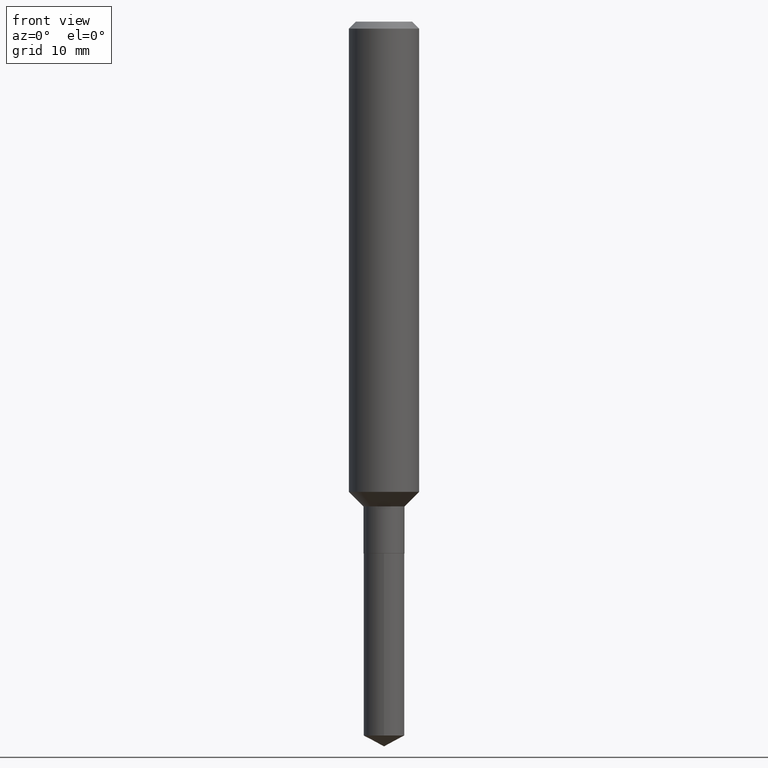
[diagram: clean part render]
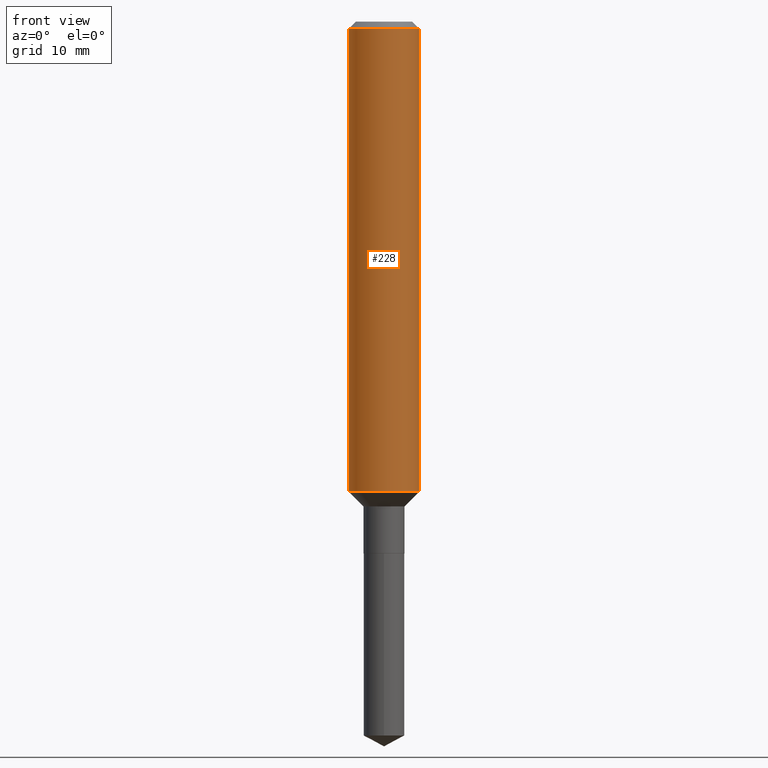
[diagram: same view with one face highlighted and labeled with its STEP entity id]
A machine part, front view. The second image highlights one B-rep face of the part: STEP entity #228.
In plain terms, the highlighted cylindrical surface (edge-blend (fillet) strip) has radius 2.9997 mm, axis along (-0, 0, 1).
Its self-contained STEP definition (entity closure, byte-faithful):
#21 = DIRECTION ( 'NONE',  ( 1.000000000000000000, -6.982962677686269077E-15, 0.000000000000000000 ) ) ;
#23 = DIRECTION ( 'NONE',  ( 1.000000000000000000, -6.982962677686266711E-15, 0.000000000000000000 ) ) ;
#44 = ORIENTED_EDGE ( 'NONE', *, *, #375, .T. ) ;
#47 = CYLINDRICAL_SURFACE ( 'NONE', #214, 0.1181000000000001077 ) ;
#51 = CARTESIAN_POINT ( 'NONE',  ( -0.1181000000000001909, -4.689958877259323265E-15, -1.583599999999999453 ) ) ;
#52 = ORIENTED_EDGE ( 'NONE', *, *, #329, .F. ) ;
#64 = EDGE_CURVE ( 'NONE', #466, #400, #371, .T. ) ;
#91 = CARTESIAN_POINT ( 'NONE',  ( 0.1181000000000001909, -6.353797740426752880E-15, -1.583599999999999453 ) ) ;
#96 = CARTESIAN_POINT ( 'NONE',  ( -0.1180999999999999966, -1.966638347775060263E-15, -0.02362000000000013741 ) ) ;
#100 = DIRECTION ( 'NONE',  ( -2.445468806185136597E-29, 3.491481338843145583E-15, 1.000000000000000000 ) ) ;
#120 = ORIENTED_EDGE ( 'NONE', *, *, #363, .F. ) ;
#156 = LINE ( 'NONE', #302, #282 ) ;
#179 = LINE ( 'NONE', #392, #378 ) ;
#197 = CARTESIAN_POINT ( 'NONE',  ( 0.000000000000000000, 0.000000000000000000, 0.000000000000000000 ) ) ;
#204 = DIRECTION ( 'NONE',  ( -2.445468806185136877E-29, 3.491481338843145188E-15, 1.000000000000000000 ) ) ;
#214 = AXIS2_PLACEMENT_3D ( 'NONE', #197, #377, #486 ) ;
#228 = ADVANCED_FACE ( 'NONE', ( #344 ), #47, .T. ) ;
#231 = VERTEX_POINT ( 'NONE', #303 ) ;
#247 = CARTESIAN_POINT ( 'NONE',  ( 3.872644401474781169E-29, -5.529109848192003829E-15, -1.583599999999999453 ) ) ;
#251 = AXIS2_PLACEMENT_3D ( 'NONE', #397, #100, #23 ) ;
#282 = VECTOR ( 'NONE', #458, 39.37007874015748143 ) ;
#296 = ORIENTED_EDGE ( 'NONE', *, *, #64, .T. ) ;
#302 = CARTESIAN_POINT ( 'NONE',  ( -0.1181000000000001077, 8.391509709326790846E-16, -5.809262341591049389E-30 ) ) ;
#303 = CARTESIAN_POINT ( 'NONE',  ( 0.1180999999999999966, -9.071566814582237199E-16, -0.02362000000000013741 ) ) ;
#304 = EDGE_LOOP ( 'NONE', ( #52, #296, #44, #120 ) ) ;
#329 = EDGE_CURVE ( 'NONE', #466, #385, #156, .T. ) ;
#330 = AXIS2_PLACEMENT_3D ( 'NONE', #247, #427, #21 ) ;
#341 = CIRCLE ( 'NONE', #251, 0.1180999999999999966 ) ;
#344 = FACE_OUTER_BOUND ( 'NONE', #304, .T. ) ;
#363 = EDGE_CURVE ( 'NONE', #385, #231, #341, .T. ) ;
#371 = CIRCLE ( 'NONE', #330, 0.1181000000000001909 ) ;
#375 = EDGE_CURVE ( 'NONE', #400, #231, #179, .T. ) ;
#377 = DIRECTION ( 'NONE',  ( -2.445468806185136597E-29, 3.491481338843145583E-15, 1.000000000000000000 ) ) ;
#378 = VECTOR ( 'NONE', #204, 39.37007874015748143 ) ;
#385 = VERTEX_POINT ( 'NONE', #96 ) ;
#392 = CARTESIAN_POINT ( 'NONE',  ( 0.1181000000000001077, -8.246878922347488542E-16, 5.758764772215005345E-30 ) ) ;
#397 = CARTESIAN_POINT ( 'NONE',  ( 5.776197320209326656E-31, -8.246878922347558061E-17, -0.02362000000000013741 ) ) ;
#400 = VERTEX_POINT ( 'NONE', #91 ) ;
#427 = DIRECTION ( 'NONE',  ( -2.445468806185136597E-29, 3.491481338843145583E-15, 1.000000000000000000 ) ) ;
#458 = DIRECTION ( 'NONE',  ( -2.445468806185136877E-29, 3.491481338843145188E-15, 1.000000000000000000 ) ) ;
#466 = VERTEX_POINT ( 'NONE', #51 ) ;
#486 = DIRECTION ( 'NONE',  ( 1.000000000000000000, -6.982962677686266711E-15, 4.876176775795935793E-29 ) ) ;